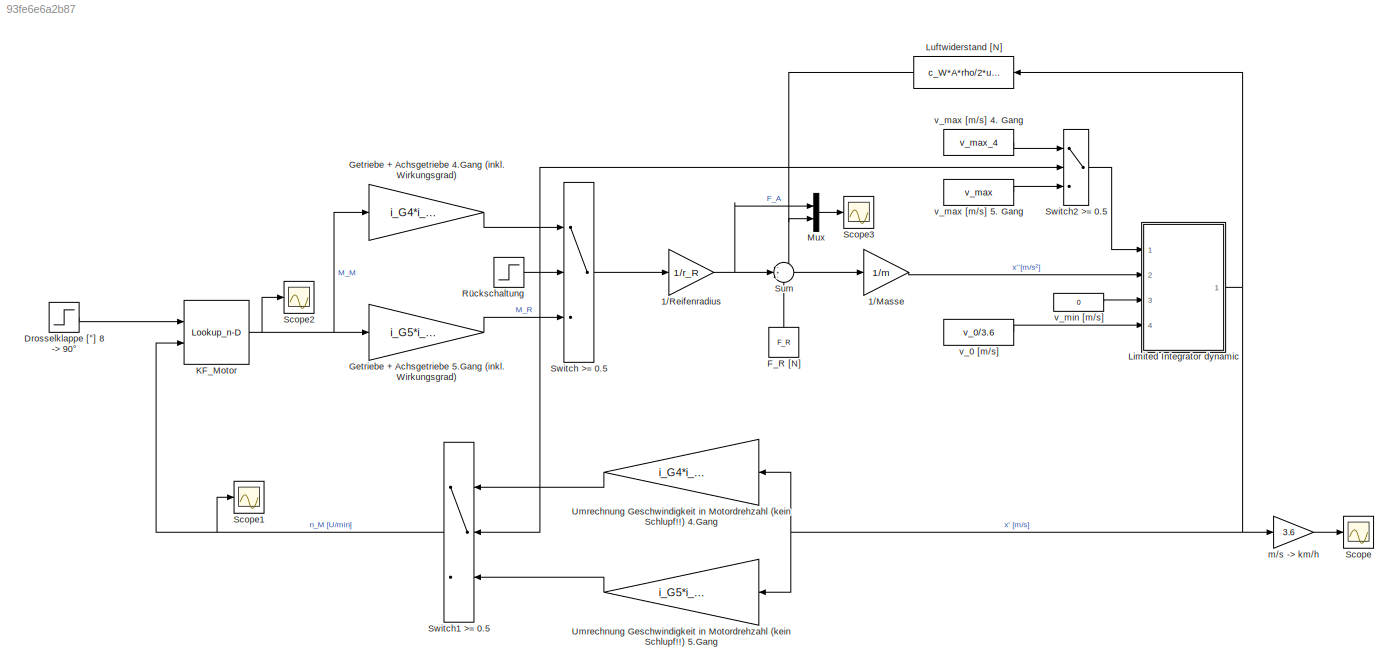
MODEL slx_93fe6e6a2b87
KIND model
CONFIG PostLoadFcn = , if any(exist('dsrtsu_mdlpostloadfcn', 'file') == [2, 3, 6]), try dsrtsu_mdlpostloadfcn('Execute', bdroot); catch fprintf('Error in PostLoadFcn (dsrtsu_mdlpostloadfcn) for model "%s":\n %s\n', bdroot, lasterr); end, end, \n
BLOCK [Gain] 1//Masse
  Gain = 1/m
  OutDataTypeStr = Inherit: Inherit via internal rule
  ParamDataTypeStr = Inherit: Inherit via internal rule
  SaturateOnIntegerOverflow = off
BLOCK [Gain] 1//Reifenradius
  Gain = 1/r_R
  OutDataTypeStr = Inherit: Inherit via internal rule
  ParamDataTypeStr = Inherit: Inherit via internal rule
  SaturateOnIntegerOverflow = off
BLOCK [Step] Drosselklappe [°] 8 -> 90°
  After = 90
  Before = 8
  SampleTime = 0
  Time = 5
BLOCK [Constant] F_R [N]
  Value = F_R
BLOCK [Gain] Getriebe + Achsgetriebe 4.Gang (inkl. Wirkungsgrad) 
  Gain = i_G4*i_A*eta
  OutDataTypeStr = Inherit: Inherit via internal rule
  ParamDataTypeStr = Inherit: Inherit via internal rule
  SaturateOnIntegerOverflow = off
BLOCK [Gain] Getriebe + Achsgetriebe 5.Gang (inkl. Wirkungsgrad)
  Gain = i_G5*i_A*eta
  OutDataTypeStr = Inherit: Inherit via internal rule
  ParamDataTypeStr = Inherit: Inherit via internal rule
  SaturateOnIntegerOverflow = off
BLOCK [Lookup_n-D] KF_Motor
  BreakpointsForDimension1 = KF_Motor(2:end,1)
  BreakpointsForDimension2 = KF_Motor(1,2:end)
  OpenFcn = kf_plot
  Ports = [2, 1]
  RndMeth = Simplest
  Table = KF_Motor(2:end,2:end)
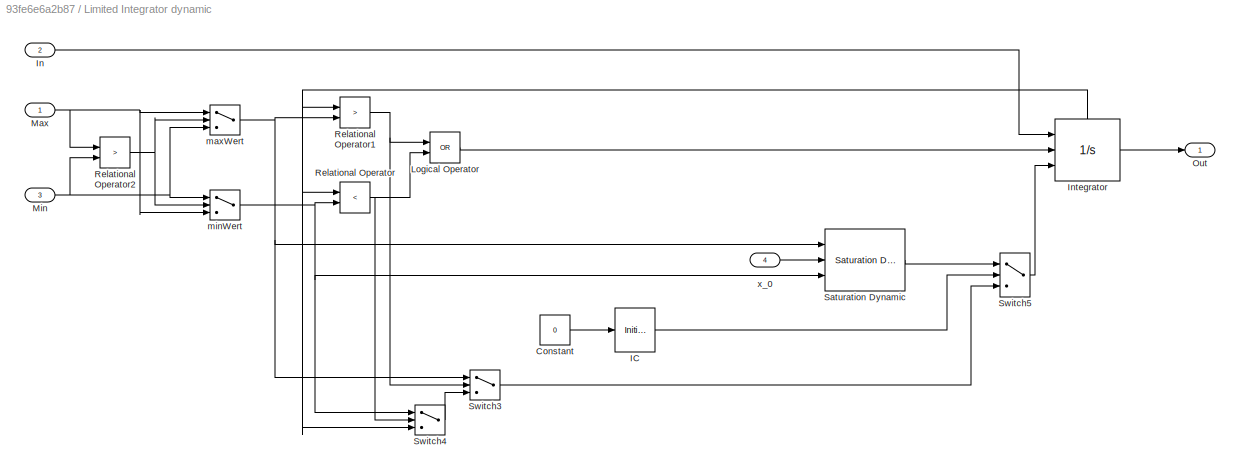
BLOCK [SubSystem] Limited Integrator dynamic
  FunctionWithSeparateData = off
  MaskHideContents = off
  MinAlgLoopOccurrences = off
  Opaque = off
  Ports = [4, 1]
  PropExecContextOutsideSubsystem = off
  RTWSystemCode = Auto
  RequestExecContextInheritance = off
BLOCK [Constant] Limited Integrator dynamic/Constant
  Value = 0
BLOCK [InitialCondition] Limited Integrator dynamic/IC
BLOCK [Inport] Limited Integrator dynamic/In
  IconDisplay = Port number
  Port = 2
BLOCK [Integrator] Limited Integrator dynamic/Integrator
  ExternalReset = level
  InitialConditionSource = external
  Ports = [3, 1, 0, 0, 1]
  ShowStatePort = on
BLOCK [Logic] Limited Integrator dynamic/Logical Operator
  AllPortsSameDT = off
  Operator = OR
  OutDataTypeStr = boolean
  Ports = [2, 1]
BLOCK [Inport] Limited Integrator dynamic/Max
  IconDisplay = Port number
BLOCK [Inport] Limited Integrator dynamic/Min
  IconDisplay = Port number
  Port = 3
BLOCK [Outport] Limited Integrator dynamic/Out
  IconDisplay = Port number
BLOCK [RelationalOperator] Limited Integrator dynamic/Relational Operator
  InputSameDT = off
  Operator = <
  OutDataTypeStr = boolean
  Ports = [2, 1]
BLOCK [RelationalOperator] Limited Integrator dynamic/Relational Operator1
  InputSameDT = off
  Operator = >
  OutDataTypeStr = boolean
  Ports = [2, 1]
BLOCK [RelationalOperator] Limited Integrator dynamic/Relational Operator2
  InputSameDT = off
  Operator = >
  OutDataTypeStr = boolean
  Ports = [2, 1]
BLOCK [Reference] Limited Integrator dynamic/Saturation Dynamic  REF=simulink/Discontinuities/Saturation
Dynamic
  DoSatur = off
  LockScale = off
  OutDataType = fixdt(1, 16)
  OutDataTypeStr = Inherit: Same as second input
  OutMax = []
  OutMin = []
  OutScaling = 2^-10
  OutputDataTypeScalingMode = Same as second input
  Ports = [3, 1]
  RndMeth = Floor
  SourceBlock = simulink/Discontinuities/Saturation\nDynamic
  SourceType = Saturation Dynamic
BLOCK [Switch] Limited Integrator dynamic/Switch3
  Criteria = u2 ~= 0
  InputSameDT = off
  SaturateOnIntegerOverflow = off
BLOCK [Switch] Limited Integrator dynamic/Switch4
  Criteria = u2 ~= 0
  InputSameDT = off
  SaturateOnIntegerOverflow = off
BLOCK [Switch] Limited Integrator dynamic/Switch5
  Criteria = u2 ~= 0
  InputSameDT = off
  SaturateOnIntegerOverflow = off
BLOCK [Switch] Limited Integrator dynamic/maxWert
  Criteria = u2 ~= 0
  InputSameDT = off
  SaturateOnIntegerOverflow = off
BLOCK [Switch] Limited Integrator dynamic/minWert
  Criteria = u2 ~= 0
  InputSameDT = off
  SaturateOnIntegerOverflow = off
BLOCK [Inport] Limited Integrator dynamic/x_0
  IconDisplay = Port number
  Port = 4
BLOCK [Fcn] Luftwiderstand [N]
  Expr = c_W*A*rho/2*u^2
BLOCK [Mux] Mux
  DisplayOption = bar
  Inputs = 2
  Ports = [2, 1]
BLOCK [Step] Rückschaltung
  SampleTime = 0
  Time = 5
BLOCK [Scope] Scope
  DataFormat = StructureWithTime
  Floating = off
  LimitDataPoints = off
  NumInputPorts = 1
  Ports = [1]
  SampleTime = 0
  SaveName = Erg_v
  SaveToWorkspace = on
  ShowLegends = off
  ZoomMode = yonly
BLOCK [Scope] Scope1
  DataFormat = StructureWithTime
  Floating = off
  LimitDataPoints = off
  NumInputPorts = 1
  Ports = [1]
  SampleTime = 0
  SaveName = Erg_n
  SaveToWorkspace = on
  ShowLegends = off
BLOCK [Scope] Scope2
  DataFormat = StructureWithTime
  Floating = off
  LimitDataPoints = off
  NumInputPorts = 1
  Ports = [1]
  SampleTime = 0
  SaveName = Erg_M
  SaveToWorkspace = on
  ShowLegends = off
BLOCK [Scope] Scope3
  DataFormat = StructureWithTime
  Floating = off
  LimitDataPoints = off
  NumInputPorts = 1
  Ports = [1]
  SampleTime = 0
  SaveName = Erg_F
  SaveToWorkspace = on
  ShowLegends = off
BLOCK [Sum] Sum
  IconShape = round
  InputSameDT = off
  Inputs = -+-
  OutDataTypeStr = Inherit: Inherit via internal rule
  Ports = [3, 1]
  SaturateOnIntegerOverflow = off
BLOCK [Switch] Switch >= 0.5
  InputSameDT = off
  SaturateOnIntegerOverflow = off
  Threshold = 0.5
BLOCK [Switch] Switch1 >= 0.5
  InputSameDT = off
  SaturateOnIntegerOverflow = off
  Threshold = 0.5
BLOCK [Switch] Switch2 >= 0.5
  InputSameDT = off
  SaturateOnIntegerOverflow = off
  Threshold = 0.5
BLOCK [Gain] Umrechnung Geschwindigkeit in Motordrehzahl (kein Schlupf!!) 4.Gang
  Gain = i_G4*i_A*60/(2*pi*r_R)
  OutDataTypeStr = Inherit: Inherit via internal rule
  ParamDataTypeStr = Inherit: Inherit via internal rule
  SaturateOnIntegerOverflow = off
BLOCK [Gain] Umrechnung Geschwindigkeit in Motordrehzahl (kein Schlupf!!) 5.Gang
  Gain = i_G5*i_A*60/(2*pi*r_R)
  OutDataTypeStr = Inherit: Inherit via internal rule
  ParamDataTypeStr = Inherit: Inherit via internal rule
  SaturateOnIntegerOverflow = off
BLOCK [Gain] m//s -> km//h
  Gain = 3.6
  OutDataTypeStr = Inherit: Inherit via internal rule
  ParamDataTypeStr = Inherit: Inherit via internal rule
  SaturateOnIntegerOverflow = off
BLOCK [Constant] v_0 [m//s]
  Value = v_0/3.6
BLOCK [Constant] v_max [m//s] 4. Gang
  Value = v_max_4
BLOCK [Constant] v_max [m//s] 5. Gang
  Value = v_max
BLOCK [Constant] v_min [m//s]
  Value = 0
LINE 1//Masse:1 -> Limited Integrator dynamic:2
NET 1//Reifenradius:1 -> Mux:1, Sum:2
LINE Drosselklappe [°] 8 -> 90°:1 -> KF_Motor:1
LINE F_R [N]:1 -> Sum:3
LINE Getriebe + Achsgetriebe 4.Gang (inkl. Wirkungsgrad) :1 -> Switch >= 0.5:1
LINE Getriebe + Achsgetriebe 5.Gang (inkl. Wirkungsgrad):1 -> Switch >= 0.5:3
NET KF_Motor:1 -> Getriebe + Achsgetriebe 4.Gang (inkl. Wirkungsgrad) :1, Getriebe + Achsgetriebe 5.Gang (inkl. Wirkungsgrad):1, Scope2:1
LINE Limited Integrator dynamic/Constant:1 -> Limited Integrator dynamic/IC:1
LINE Limited Integrator dynamic/IC:1 -> Limited Integrator dynamic/Switch5:2
LINE Limited Integrator dynamic/In:1 -> Limited Integrator dynamic/Integrator:1
LINE Limited Integrator dynamic/Integrator:1 -> Limited Integrator dynamic/Out:1
NET Limited Integrator dynamic/Integrator:state -> Limited Integrator dynamic/Relational Operator1:1, Limited Integrator dynamic/Relational Operator:1, Limited Integrator dynamic/Switch4:3
LINE Limited Integrator dynamic/Logical Operator:1 -> Limited Integrator dynamic/Integrator:2
NET Limited Integrator dynamic/Max:1 -> Limited Integrator dynamic/Relational Operator2:1, Limited Integrator dynamic/maxWert:1, Limited Integrator dynamic/minWert:3
NET Limited Integrator dynamic/Min:1 -> Limited Integrator dynamic/Relational Operator2:2, Limited Integrator dynamic/maxWert:3, Limited Integrator dynamic/minWert:1
NET Limited Integrator dynamic/Relational Operator1:1 -> Limited Integrator dynamic/Logical Operator:1, Limited Integrator dynamic/Switch3:2
NET Limited Integrator dynamic/Relational Operator2:1 -> Limited Integrator dynamic/maxWert:2, Limited Integrator dynamic/minWert:2
NET Limited Integrator dynamic/Relational Operator:1 -> Limited Integrator dynamic/Logical Operator:2, Limited Integrator dynamic/Switch4:2
LINE Limited Integrator dynamic/Saturation Dynamic:1 -> Limited Integrator dynamic/Switch5:1
LINE Limited Integrator dynamic/Switch3:1 -> Limited Integrator dynamic/Switch5:3
LINE Limited Integrator dynamic/Switch4:1 -> Limited Integrator dynamic/Switch3:3
LINE Limited Integrator dynamic/Switch5:1 -> Limited Integrator dynamic/Integrator:3
NET Limited Integrator dynamic/maxWert:1 -> Limited Integrator dynamic/Relational Operator1:2, Limited Integrator dynamic/Saturation Dynamic:1, Limited Integrator dynamic/Switch3:1
NET Limited Integrator dynamic/minWert:1 -> Limited Integrator dynamic/Relational Operator:2, Limited Integrator dynamic/Saturation Dynamic:3, Limited Integrator dynamic/Switch4:1
LINE Limited Integrator dynamic/x_0:1 -> Limited Integrator dynamic/Saturation Dynamic:2
NET Limited Integrator dynamic:1 -> Luftwiderstand [N]:1, Umrechnung Geschwindigkeit in Motordrehzahl (kein Schlupf!!) 4.Gang:1, Umrechnung Geschwindigkeit in Motordrehzahl (kein Schlupf!!) 5.Gang:1, m//s -> km//h:1
NET Luftwiderstand [N]:1 -> Mux:2, Sum:1
LINE Mux:1 -> Scope3:1
NET Rückschaltung:1 -> Switch >= 0.5:2, Switch1 >= 0.5:2, Switch2 >= 0.5:2
LINE Sum:1 -> 1//Masse:1
LINE Switch >= 0.5:1 -> 1//Reifenradius:1
NET Switch1 >= 0.5:1 -> KF_Motor:2, Scope1:1
LINE Switch2 >= 0.5:1 -> Limited Integrator dynamic:1
LINE Umrechnung Geschwindigkeit in Motordrehzahl (kein Schlupf!!) 4.Gang:1 -> Switch1 >= 0.5:1
LINE Umrechnung Geschwindigkeit in Motordrehzahl (kein Schlupf!!) 5.Gang:1 -> Switch1 >= 0.5:3
LINE m//s -> km//h:1 -> Scope:1
LINE v_0 [m//s]:1 -> Limited Integrator dynamic:4
LINE v_max [m//s] 4. Gang:1 -> Switch2 >= 0.5:1
LINE v_max [m//s] 5. Gang:1 -> Switch2 >= 0.5:3
LINE v_min [m//s]:1 -> Limited Integrator dynamic:3
note: NET lines group one-source signal fan-out (src -> all destinations, sorted); 1:1 wires keep LINE
